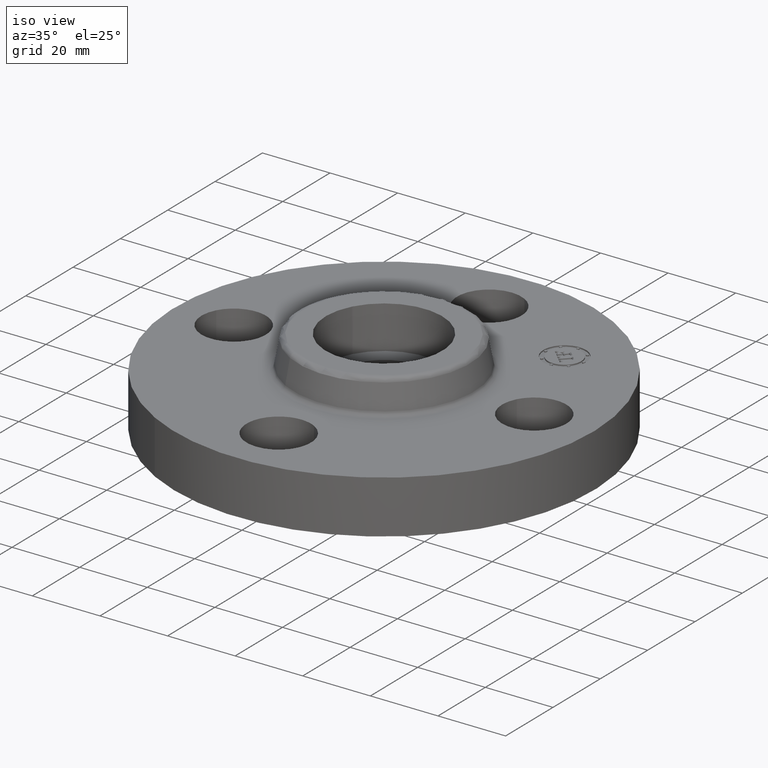
[diagram: clean part render]
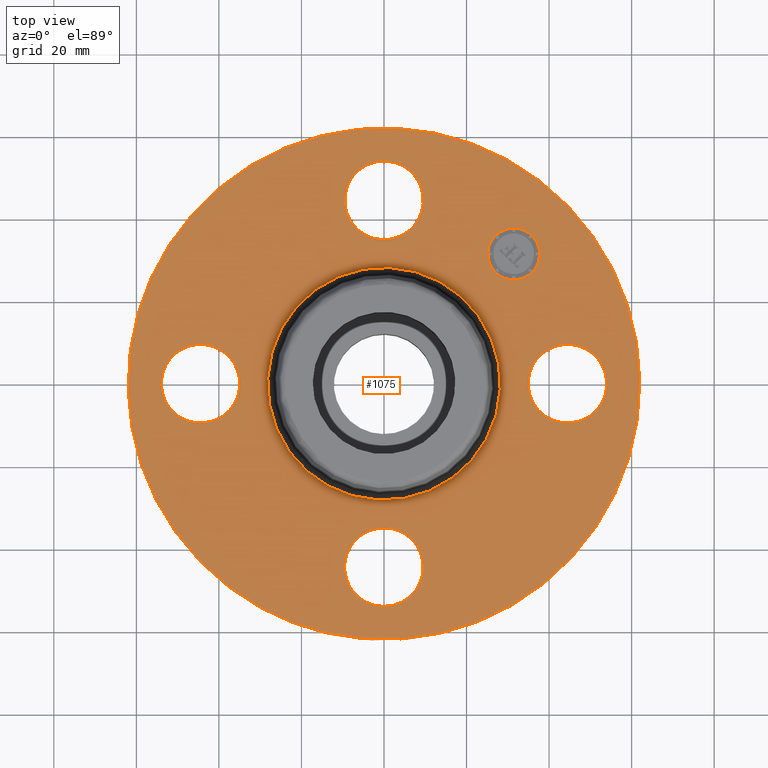
[diagram: tour spotlight — one face highlighted and labeled with its STEP entity id]
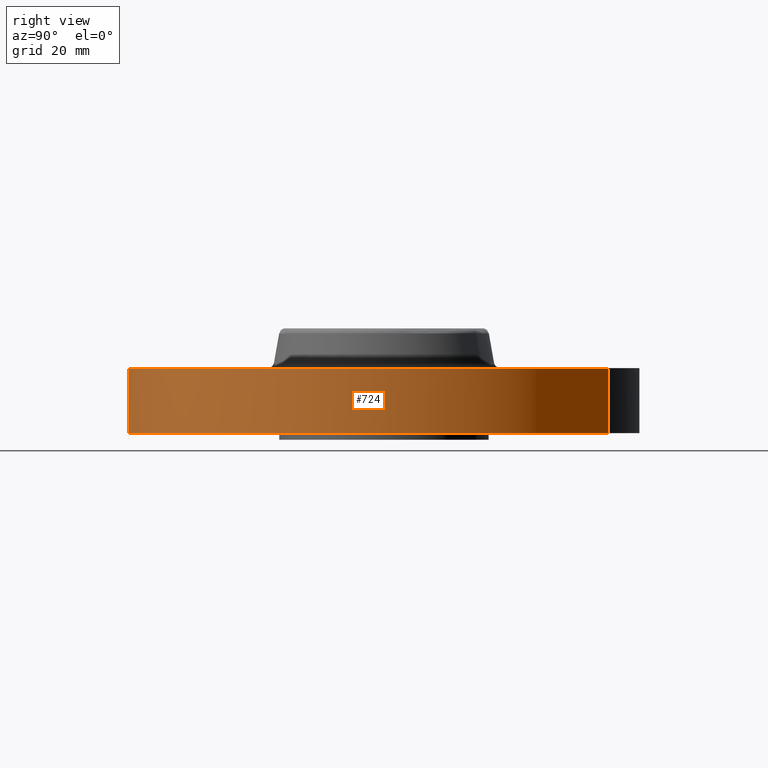
[diagram: tour spotlight — one face highlighted and labeled with its STEP entity id]
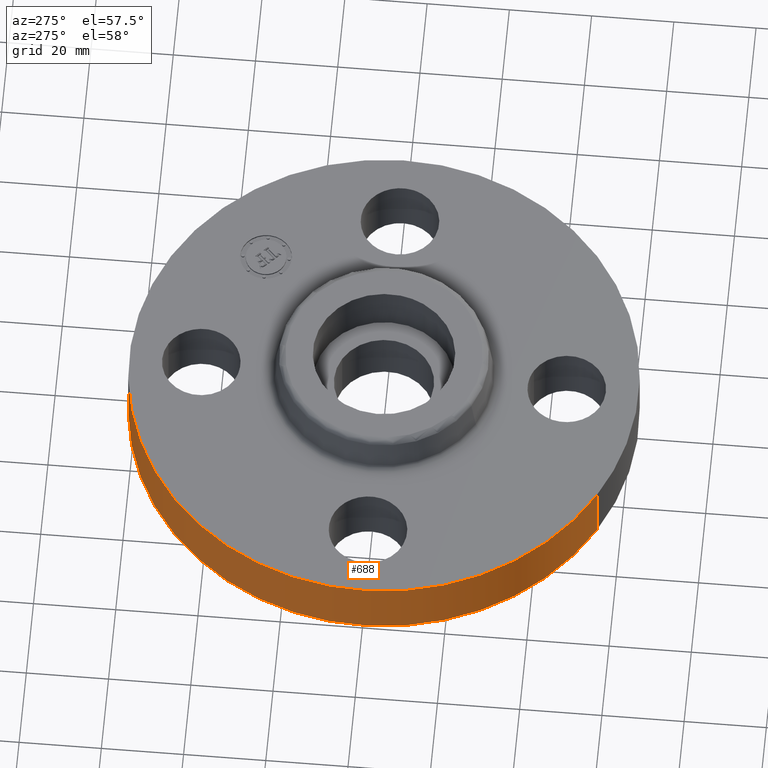
[diagram: tour spotlight — one face highlighted and labeled with its STEP entity id]
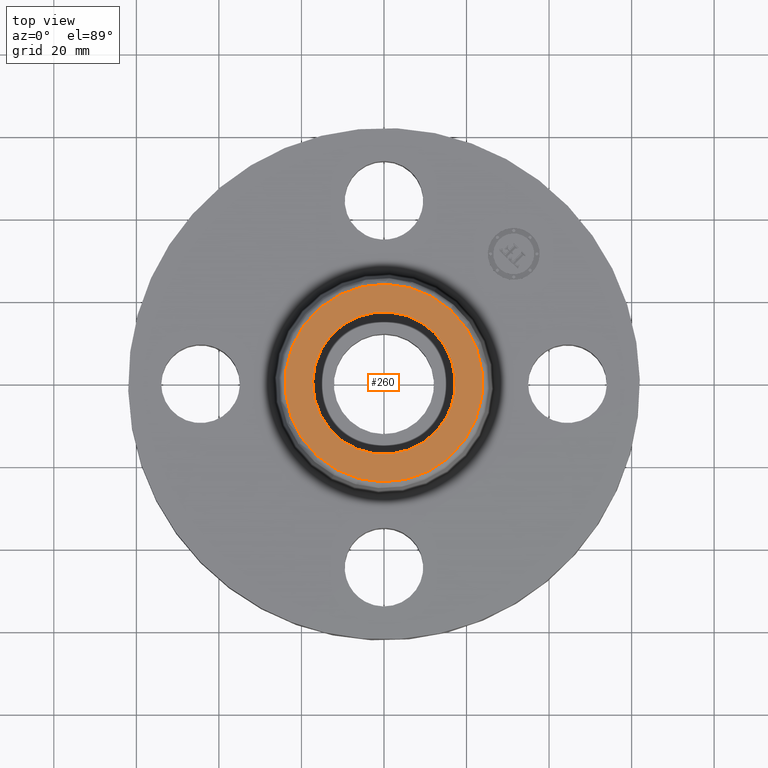
[diagram: tour spotlight — one face highlighted and labeled with its STEP entity id]
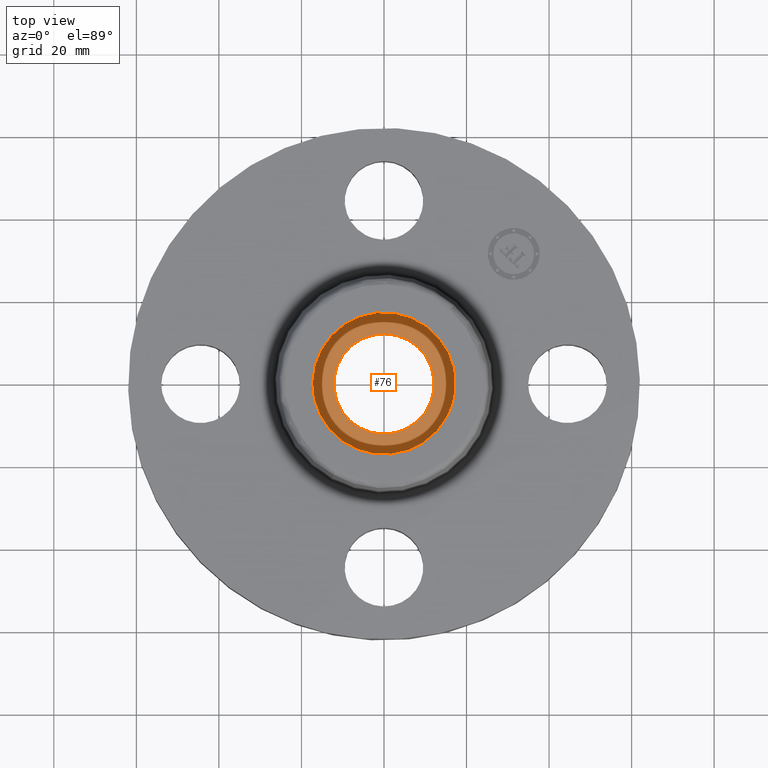
[diagram: tour spotlight — one face highlighted and labeled with its STEP entity id]
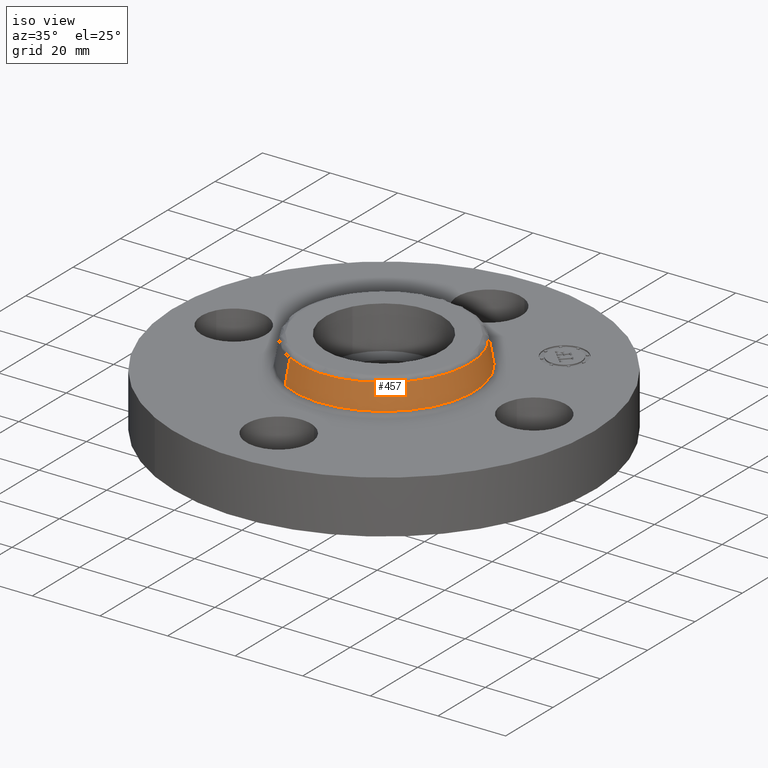
[diagram: tour spotlight — one face highlighted and labeled with its STEP entity id]
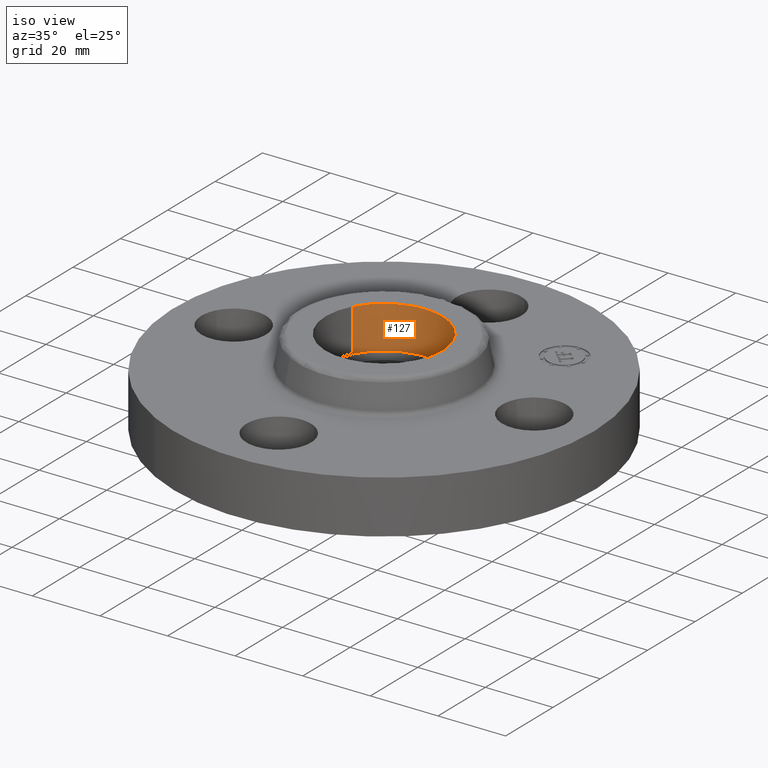
[diagram: tour spotlight — one face highlighted and labeled with its STEP entity id]
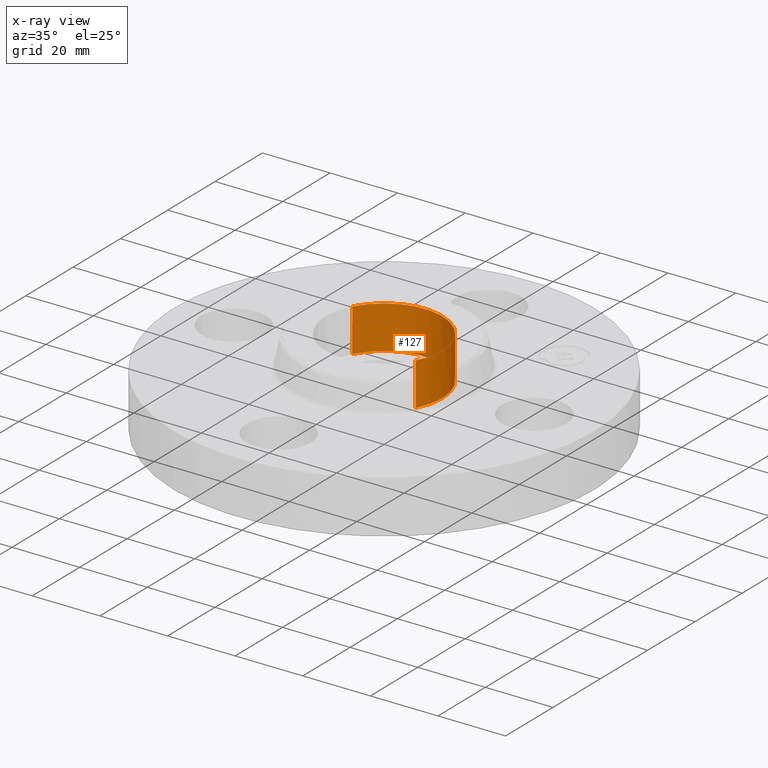
[diagram: x-ray of the same camera — body ghosted, this tour face saturated]
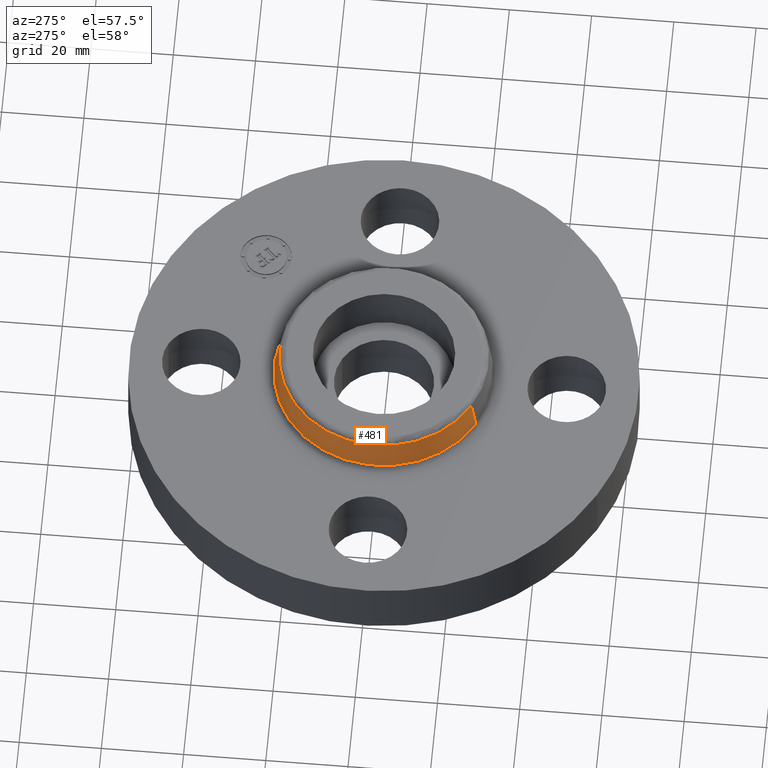
[diagram: tour spotlight — one face highlighted and labeled with its STEP entity id]
A machine part: a face-by-face anatomy tour. The part has 412 B-rep faces; the first image is the clean iso view, then the 8 largest visible faces are spotlighted one at a time (largest first), each with its STEP entity span.

Face 1 — top view, entity #1075. In plain terms, the highlighted planar face has unit normal (0, 0, -1).
Definition (entity closure, byte-faithful):
#603=AXIS2_PLACEMENT_3D('Circle Axis2P3D',#601,#602,$) ;
#641=AXIS2_PLACEMENT_3D('Circle Axis2P3D',#639,#640,$) ;
#672=AXIS2_PLACEMENT_3D('Circle Axis2P3D',#670,#671,$) ;
#753=AXIS2_PLACEMENT_3D('Circle Axis2P3D',#751,#752,$) ;
#827=AXIS2_PLACEMENT_3D('Circle Axis2P3D',#825,#826,$) ;
#901=AXIS2_PLACEMENT_3D('Circle Axis2P3D',#899,#900,$) ;
#975=AXIS2_PLACEMENT_3D('Circle Axis2P3D',#973,#974,$) ;
#1031=AXIS2_PLACEMENT_3D('Plane Axis2P3D',#1028,#1029,#1030) ;
#1059=AXIS2_PLACEMENT_3D('Circle Axis2P3D',#1057,#1058,$) ;
#1068=AXIS2_PLACEMENT_3D('Circle Axis2P3D',#1066,#1067,$) ;
#601=CARTESIAN_POINT('Axis2P3D Location',(0.,0.,0.620000000003)) ;
#605=CARTESIAN_POINT('Vertex',(0.53232821848,0.974420267848,0.620000000003)) ;
#607=CARTESIAN_POINT('Vertex',(-0.532328218482,-0.974420267852,0.620000000003)) ;
#639=CARTESIAN_POINT('Axis2P3D Location',(0.,0.,0.620000000003)) ;
#667=CARTESIAN_POINT('Vertex',(-1.1697983142,-2.14130145102,0.619999999989)) ;
#670=CARTESIAN_POINT('Axis2P3D Location',(0.,0.,0.619999999989)) ;
#674=CARTESIAN_POINT('Vertex',(1.1697983142,2.14130145102,0.619999999989)) ;
#702=CARTESIAN_POINT('Control Point',(1.1697983142,2.14130145102,0.619999999989)) ;
#703=CARTESIAN_POINT('Control Point',(1.50615315958,1.95754996152,0.61999999999)) ;
#704=CARTESIAN_POINT('Control Point',(1.80642848437,1.70775535256,0.61999999999)) ;
#705=CARTESIAN_POINT('Control Point',(2.05327575034,1.40131042472,0.619999999991)) ;
#706=CARTESIAN_POINT('Control Point',(2.41351270846,0.708143919932,0.619999999992)) ;
#707=CARTESIAN_POINT('Control Point',(2.48490322143,-0.0697724406241,0.619999999994)) ;
#708=CARTESIAN_POINT('Control Point',(2.44276131057,-0.461009102841,0.619999999994)) ;
#709=CARTESIAN_POINT('Control Point',(2.20734457047,-1.20587783479,0.619999999996)) ;
#710=CARTESIAN_POINT('Control Point',(1.70775535256,-1.80642848437,0.619999999997)) ;
#711=CARTESIAN_POINT('Control Point',(1.40131042472,-2.05327575033,0.619999999997)) ;
#712=CARTESIAN_POINT('Control Point',(0.708143919932,-2.41351270846,0.619999999999)) ;
#713=CARTESIAN_POINT('Control Point',(-0.0697724406238,-2.48490322143,0.62)) ;
#714=CARTESIAN_POINT('Control Point',(-0.461009102841,-2.44276131057,0.620000000001)) ;
#715=CARTESIAN_POINT('Control Point',(-0.833443468817,-2.32505294052,0.620000000001)) ;
#716=CARTESIAN_POINT('Control Point',(-1.1697983142,-2.14130145102,0.620000000002)) ;
#741=CARTESIAN_POINT('Vertex',(2.07909346074,-0.179784576955,0.620000000002)) ;
#748=CARTESIAN_POINT('Vertex',(1.4209065393,0.179784576977,0.619999999987)) ;
#751=CARTESIAN_POINT('Axis2P3D Location',(1.75000000001,0.,0.619999999987)) ;
#776=CARTESIAN_POINT('Control Point',(1.4209065393,0.179784576977,0.620000000002)) ;
#777=CARTESIAN_POINT('Control Point',(1.44914703461,0.231478456903,0.620000000001)) ;
#778=CARTESIAN_POINT('Control Point',(1.48753759951,0.27762732854,0.620000000001)) ;
#779=CARTESIAN_POINT('Control Point',(1.53463466834,0.315564920645,0.62)) ;
#780=CARTESIAN_POINT('Control Point',(1.64116640576,0.370929207243,0.619999999998)) ;
#781=CARTESIAN_POINT('Control Point',(1.76072322347,0.38190110985,0.619999999997)) ;
#782=CARTESIAN_POINT('Control Point',(1.82085180885,0.375424381748,0.619999999996)) ;
#783=CARTESIAN_POINT('Control Point',(1.93532958528,0.339243530298,0.619999999995)) ;
#784=CARTESIAN_POINT('Control Point',(2.02762732855,0.262462400496,0.619999999993)) ;
#785=CARTESIAN_POINT('Control Point',(2.06556492066,0.215365331668,0.619999999992)) ;
#786=CARTESIAN_POINT('Control Point',(2.12092920725,0.108833594252,0.619999999991)) ;
#787=CARTESIAN_POINT('Control Point',(2.13190110986,-0.0107232234562,0.61999999999)) ;
#788=CARTESIAN_POINT('Control Point',(2.12542438176,-0.0708518088378,0.619999999989)) ;
#789=CARTESIAN_POINT('Control Point',(2.10733395603,-0.128090697051,0.619999999988)) ;
#790=CARTESIAN_POINT('Control Point',(2.07909346072,-0.179784576977,0.619999999987)) ;
#815=CARTESIAN_POINT('Vertex',(0.179784576973,-1.42090653933,0.620000000002)) ;
#822=CARTESIAN_POINT('Vertex',(-0.179784576977,-2.07909346072,0.619999999987)) ;
#825=CARTESIAN_POINT('Axis2P3D Location',(-1.72584639625E-016,-1.75000000001,0.619999999987)) ;
#850=CARTESIAN_POINT('Control Point',(-0.179784576977,-2.07909346072,0.620000000002)) ;
#851=CARTESIAN_POINT('Control Point',(-0.231478456903,-2.05085296541,0.620000000001)) ;
#852=CARTESIAN_POINT('Control Point',(-0.27762732854,-2.01246240051,0.620000000001)) ;
#853=CARTESIAN_POINT('Control Point',(-0.315564920645,-1.96536533168,0.62)) ;
#854=CARTESIAN_POINT('Control Point',(-0.370929207243,-1.85883359426,0.619999999998)) ;
#855=CARTESIAN_POINT('Control Point',(-0.38190110985,-1.73927677655,0.619999999997)) ;
#856=CARTESIAN_POINT('Control Point',(-0.375424381748,-1.67914819117,0.619999999996)) ;
#857=CARTESIAN_POINT('Control Point',(-0.339243530298,-1.56467041474,0.619999999995)) ;
#858=CARTESIAN_POINT('Control Point',(-0.262462400496,-1.47237267147,0.619999999993)) ;
#859=CARTESIAN_POINT('Control Point',(-0.215365331668,-1.43443507936,0.619999999992)) ;
#860=CARTESIAN_POINT('Control Point',(-0.108833594252,-1.37907079277,0.619999999991)) ;
#861=CARTESIAN_POINT('Control Point',(0.0107232234562,-1.36809889016,0.61999999999)) ;
#862=CARTESIAN_POINT('Control Point',(0.0708518088378,-1.37457561826,0.619999999989)) ;
#863=CARTESIAN_POINT('Control Point',(0.128090697051,-1.39266604399,0.619999999988)) ;
#864=CARTESIAN_POINT('Control Point',(0.179784576977,-1.4209065393,0.619999999987)) ;
#889=CARTESIAN_POINT('Vertex',(-1.42090653927,-0.179784576955,0.620000000002)) ;
#896=CARTESIAN_POINT('Vertex',(-2.07909346072,0.179784576978,0.619999999987)) ;
#899=CARTESIAN_POINT('Axis2P3D Location',(-1.75000000001,-2.14313189852E-016,0.619999999987)) ;
#924=CARTESIAN_POINT('Control Point',(-2.07909346072,0.179784576978,0.620000000002)) ;
#925=CARTESIAN_POINT('Control Point',(-2.05085296541,0.231478456903,0.620000000001)) ;
#926=CARTESIAN_POINT('Control Point',(-2.01246240051,0.277627328541,0.620000000001)) ;
#927=CARTESIAN_POINT('Control Point',(-1.96536533168,0.315564920646,0.62)) ;
#928=CARTESIAN_POINT('Control Point',(-1.85883359426,0.370929207244,0.619999999998)) ;
#929=CARTESIAN_POINT('Control Point',(-1.73927677655,0.381901109851,0.619999999997)) ;
#930=CARTESIAN_POINT('Control Point',(-1.67914819117,0.375424381749,0.619999999996)) ;
#931=CARTESIAN_POINT('Control Point',(-1.56467041474,0.339243530299,0.619999999995)) ;
#932=CARTESIAN_POINT('Control Point',(-1.47237267147,0.262462400496,0.619999999993)) ;
#933=CARTESIAN_POINT('Control Point',(-1.43443507936,0.215365331668,0.619999999992)) ;
#934=CARTESIAN_POINT('Control Point',(-1.37907079277,0.108833594252,0.619999999991)) ;
#935=CARTESIAN_POINT('Control Point',(-1.36809889016,-0.0107232234563,0.61999999999)) ;
#936=CARTESIAN_POINT('Control Point',(-1.37457561826,-0.070851808838,0.619999999989)) ;
#937=CARTESIAN_POINT('Control Point',(-1.39266604399,-0.128090697052,0.619999999988)) ;
#938=CARTESIAN_POINT('Control Point',(-1.4209065393,-0.179784576977,0.619999999987)) ;
#963=CARTESIAN_POINT('Vertex',(-0.179784576973,1.42090653929,0.620000000002)) ;
#970=CARTESIAN_POINT('Vertex',(0.179784576977,2.07909346072,0.619999999987)) ;
#973=CARTESIAN_POINT('Axis2P3D Location',(-3.21469784777E-016,1.75000000001,0.619999999987)) ;
#998=CARTESIAN_POINT('Control Point',(0.179784576977,2.07909346072,0.620000000002)) ;
#999=CARTESIAN_POINT('Control Point',(0.231478456903,2.05085296541,0.620000000001)) ;
#1000=CARTESIAN_POINT('Control Point',(0.27762732854,2.01246240051,0.620000000001)) ;
#1001=CARTESIAN_POINT('Control Point',(0.315564920645,1.96536533168,0.62)) ;
#1002=CARTESIAN_POINT('Control Point',(0.370929207243,1.85883359426,0.619999999998)) ;
#1003=CARTESIAN_POINT('Control Point',(0.38190110985,1.73927677655,0.619999999997)) ;
#1004=CARTESIAN_POINT('Control Point',(0.375424381748,1.67914819117,0.619999999996)) ;
#1005=CARTESIAN_POINT('Control Point',(0.339243530298,1.56467041474,0.619999999995)) ;
#1006=CARTESIAN_POINT('Control Point',(0.262462400496,1.47237267147,0.619999999993)) ;
#1007=CARTESIAN_POINT('Control Point',(0.215365331668,1.43443507936,0.619999999992)) ;
#1008=CARTESIAN_POINT('Control Point',(0.108833594252,1.37907079277,0.619999999991)) ;
#1009=CARTESIAN_POINT('Control Point',(-0.0107232234562,1.36809889016,0.61999999999)) ;
#1010=CARTESIAN_POINT('Control Point',(-0.0708518088378,1.37457561826,0.619999999989)) ;
#1011=CARTESIAN_POINT('Control Point',(-0.128090697051,1.39266604399,0.619999999988)) ;
#1012=CARTESIAN_POINT('Control Point',(-0.179784576977,1.4209065393,0.619999999987)) ;
#1028=CARTESIAN_POINT('Axis2P3D Location',(0.,2.44000000001,0.620000000002)) ;
#1057=CARTESIAN_POINT('Axis2P3D Location',(1.23743686708,1.23743686702,0.620000000002)) ;
#1061=CARTESIAN_POINT('Vertex',(1.06242793876,1.41244579541,0.620000000002)) ;
#1063=CARTESIAN_POINT('Vertex',(1.41244579547,1.06242793871,0.620000000002)) ;
#1066=CARTESIAN_POINT('Axis2P3D Location',(1.23743686711,1.23743686706,0.620000000002)) ;
#602=DIRECTION('Axis2P3D Direction',(-0.,0.,-0.0393700787402)) ;
#640=DIRECTION('Axis2P3D Direction',(-0.,0.,-0.0393700787402)) ;
#671=DIRECTION('Axis2P3D Direction',(0.,0.,-0.0393700787402)) ;
#752=DIRECTION('Axis2P3D Direction',(0.,-0.,-0.0393700787402)) ;
#826=DIRECTION('Axis2P3D Direction',(0.,0.,-0.0393700787402)) ;
#900=DIRECTION('Axis2P3D Direction',(0.,-0.,-0.0393700787402)) ;
#974=DIRECTION('Axis2P3D Direction',(-0.,0.,-0.0393700787402)) ;
#1029=DIRECTION('Axis2P3D Direction',(0.,0.,-0.0393700787402)) ;
#1030=DIRECTION('Axis2P3D XDirection',(0.0393700787402,0.,0.)) ;
#1058=DIRECTION('Axis2P3D Direction',(0.,0.,-0.0393700787402)) ;
#1067=DIRECTION('Axis2P3D Direction',(0.,0.,-0.0393700787402)) ;
#1034=ORIENTED_EDGE('',*,*,#717,.F.) ;
#1035=ORIENTED_EDGE('',*,*,#676,.F.) ;
#1038=ORIENTED_EDGE('',*,*,#791,.T.) ;
#1039=ORIENTED_EDGE('',*,*,#755,.T.) ;
#1042=ORIENTED_EDGE('',*,*,#643,.T.) ;
#1043=ORIENTED_EDGE('',*,*,#609,.T.) ;
#1046=ORIENTED_EDGE('',*,*,#865,.T.) ;
#1047=ORIENTED_EDGE('',*,*,#829,.T.) ;
#1050=ORIENTED_EDGE('',*,*,#939,.T.) ;
#1051=ORIENTED_EDGE('',*,*,#903,.T.) ;
#1054=ORIENTED_EDGE('',*,*,#1013,.T.) ;
#1055=ORIENTED_EDGE('',*,*,#977,.T.) ;
#1072=ORIENTED_EDGE('',*,*,#1065,.T.) ;
#1073=ORIENTED_EDGE('',*,*,#1070,.T.) ;
#1040=FACE_BOUND('',#1037,.T.) ;
#1044=FACE_BOUND('',#1041,.T.) ;
#1048=FACE_BOUND('',#1045,.T.) ;
#1052=FACE_BOUND('',#1049,.T.) ;
#1056=FACE_BOUND('',#1053,.T.) ;
#1074=FACE_BOUND('',#1071,.T.) ;
#1075=ADVANCED_FACE('PartBody',(#1036,#1040,#1044,#1048,#1052,#1056,#1074),#1032,.F.) ;
#701=B_SPLINE_CURVE_WITH_KNOTS('',5,(#702,#703,#704,#705,#706,#707,#708,#709,#710,#711,#712,#713,#714,#715,#716),.UNSPECIFIED.,.F.,.U.,(6,3,3,3,6),(-97.3516731498,-48.6758365749,0.,48.6758365749,97.3516731498),.UNSPECIFIED.) ;
#775=B_SPLINE_CURVE_WITH_KNOTS('',5,(#776,#777,#778,#779,#780,#781,#782,#783,#784,#785,#786,#787,#788,#789,#790),.UNSPECIFIED.,.F.,.U.,(6,3,3,3,6),(-14.9618350128,-7.48091750638,0.,7.48091750638,14.9618350128),.UNSPECIFIED.) ;
#849=B_SPLINE_CURVE_WITH_KNOTS('',5,(#850,#851,#852,#853,#854,#855,#856,#857,#858,#859,#860,#861,#862,#863,#864),.UNSPECIFIED.,.F.,.U.,(6,3,3,3,6),(-14.9618350128,-7.48091750638,0.,7.48091750638,14.9618350128),.UNSPECIFIED.) ;
#923=B_SPLINE_CURVE_WITH_KNOTS('',5,(#924,#925,#926,#927,#928,#929,#930,#931,#932,#933,#934,#935,#936,#937,#938),.UNSPECIFIED.,.F.,.U.,(6,3,3,3,6),(-14.9618350128,-7.4809175064,0.,7.4809175064,14.9618350128),.UNSPECIFIED.) ;
#997=B_SPLINE_CURVE_WITH_KNOTS('',5,(#998,#999,#1000,#1001,#1002,#1003,#1004,#1005,#1006,#1007,#1008,#1009,#1010,#1011,#1012),.UNSPECIFIED.,.F.,.U.,(6,3,3,3,6),(-14.9618350128,-7.48091750638,0.,7.48091750638,14.9618350128),.UNSPECIFIED.) ;
#604=CIRCLE('generated circle',#603,1.11034597788) ;
#642=CIRCLE('generated circle',#641,1.11034597788) ;
#673=CIRCLE('generated circle',#672,2.44000000001) ;
#754=CIRCLE('generated circle',#753,0.375000000001) ;
#828=CIRCLE('generated circle',#827,0.375000000001) ;
#902=CIRCLE('generated circle',#901,0.375000000002) ;
#976=CIRCLE('generated circle',#975,0.375000000001) ;
#1060=CIRCLE('generated circle',#1059,0.247500000012) ;
#1069=CIRCLE('generated circle',#1068,0.247500000012) ;
#609=EDGE_CURVE('',#606,#608,#604,.T.) ;
#643=EDGE_CURVE('',#608,#606,#642,.T.) ;
#676=EDGE_CURVE('',#668,#675,#673,.T.) ;
#717=EDGE_CURVE('',#675,#668,#701,.T.) ;
#755=EDGE_CURVE('',#742,#749,#754,.T.) ;
#791=EDGE_CURVE('',#749,#742,#775,.T.) ;
#829=EDGE_CURVE('',#816,#823,#828,.T.) ;
#865=EDGE_CURVE('',#823,#816,#849,.T.) ;
#903=EDGE_CURVE('',#890,#897,#902,.T.) ;
#939=EDGE_CURVE('',#897,#890,#923,.T.) ;
#977=EDGE_CURVE('',#964,#971,#976,.T.) ;
#1013=EDGE_CURVE('',#971,#964,#997,.T.) ;
#1065=EDGE_CURVE('',#1062,#1064,#1060,.T.) ;
#1070=EDGE_CURVE('',#1064,#1062,#1069,.T.) ;
#1033=EDGE_LOOP('',(#1034,#1035)) ;
#1037=EDGE_LOOP('',(#1038,#1039)) ;
#1041=EDGE_LOOP('',(#1042,#1043)) ;
#1045=EDGE_LOOP('',(#1046,#1047)) ;
#1049=EDGE_LOOP('',(#1050,#1051)) ;
#1053=EDGE_LOOP('',(#1054,#1055)) ;
#1071=EDGE_LOOP('',(#1072,#1073)) ;
#1036=FACE_OUTER_BOUND('',#1033,.T.) ;
#1032=PLANE('',#1031) ;
#606=VERTEX_POINT('',#605) ;
#608=VERTEX_POINT('',#607) ;
#668=VERTEX_POINT('',#667) ;
#675=VERTEX_POINT('',#674) ;
#742=VERTEX_POINT('',#741) ;
#749=VERTEX_POINT('',#748) ;
#816=VERTEX_POINT('',#815) ;
#823=VERTEX_POINT('',#822) ;
#890=VERTEX_POINT('',#889) ;
#897=VERTEX_POINT('',#896) ;
#964=VERTEX_POINT('',#963) ;
#971=VERTEX_POINT('',#970) ;
#1062=VERTEX_POINT('',#1061) ;
#1064=VERTEX_POINT('',#1063) ;

Face 2 — right view, entity #724. In plain terms, the highlighted cylindrical surface (partial cylindrical patch) has radius 61.976 mm, axis along (0, 0, -1).
Definition (entity closure, byte-faithful):
#505=AXIS2_PLACEMENT_3D('Circle Axis2P3D',#503,#504,$) ;
#699=AXIS2_PLACEMENT_3D('Cylinder Axis2P3D',#696,#697,#698) ;
#498=CARTESIAN_POINT('Vertex',(-1.16979831419,-2.14130145103,0.)) ;
#500=CARTESIAN_POINT('Vertex',(1.16979831419,2.141301451,0.)) ;
#503=CARTESIAN_POINT('Axis2P3D Location',(8.39223703654E-016,-1.46661335744E-011,0.)) ;
#663=CARTESIAN_POINT('Line Origine',(-1.1697983142,-2.14130145102,0.309999999996)) ;
#667=CARTESIAN_POINT('Vertex',(-1.1697983142,-2.14130145102,0.619999999989)) ;
#674=CARTESIAN_POINT('Vertex',(1.1697983142,2.14130145102,0.619999999989)) ;
#677=CARTESIAN_POINT('Line Origine',(1.1697983142,2.14130145102,0.309999999996)) ;
#696=CARTESIAN_POINT('Axis2P3D Location',(0.,0.,0.468750000002)) ;
#702=CARTESIAN_POINT('Control Point',(1.1697983142,2.14130145102,0.619999999989)) ;
#703=CARTESIAN_POINT('Control Point',(1.50615315958,1.95754996152,0.61999999999)) ;
#704=CARTESIAN_POINT('Control Point',(1.80642848437,1.70775535256,0.61999999999)) ;
#705=CARTESIAN_POINT('Control Point',(2.05327575034,1.40131042472,0.619999999991)) ;
#706=CARTESIAN_POINT('Control Point',(2.41351270846,0.708143919932,0.619999999992)) ;
#707=CARTESIAN_POINT('Control Point',(2.48490322143,-0.0697724406241,0.619999999994)) ;
#708=CARTESIAN_POINT('Control Point',(2.44276131057,-0.461009102841,0.619999999994)) ;
#709=CARTESIAN_POINT('Control Point',(2.20734457047,-1.20587783479,0.619999999996)) ;
#710=CARTESIAN_POINT('Control Point',(1.70775535256,-1.80642848437,0.619999999997)) ;
#711=CARTESIAN_POINT('Control Point',(1.40131042472,-2.05327575033,0.619999999997)) ;
#712=CARTESIAN_POINT('Control Point',(0.708143919932,-2.41351270846,0.619999999999)) ;
#713=CARTESIAN_POINT('Control Point',(-0.0697724406238,-2.48490322143,0.62)) ;
#714=CARTESIAN_POINT('Control Point',(-0.461009102841,-2.44276131057,0.620000000001)) ;
#715=CARTESIAN_POINT('Control Point',(-0.833443468817,-2.32505294052,0.620000000001)) ;
#716=CARTESIAN_POINT('Control Point',(-1.1697983142,-2.14130145102,0.620000000002)) ;
#504=DIRECTION('Axis2P3D Direction',(0.,0.,-0.0393700787402)) ;
#664=DIRECTION('Vector Direction',(0.,0.,-0.0393700787402)) ;
#678=DIRECTION('Vector Direction',(0.,0.,-0.0393700787402)) ;
#697=DIRECTION('Axis2P3D Direction',(0.,0.,-0.0393700787402)) ;
#698=DIRECTION('Axis2P3D XDirection',(0.0188750212049,0.0345504945626,0.)) ;
#665=VECTOR('Line Direction',#664,0.0393700787402) ;
#679=VECTOR('Line Direction',#678,0.0393700787402) ;
#719=ORIENTED_EDGE('',*,*,#507,.F.) ;
#720=ORIENTED_EDGE('',*,*,#681,.T.) ;
#721=ORIENTED_EDGE('',*,*,#717,.T.) ;
#722=ORIENTED_EDGE('',*,*,#669,.F.) ;
#724=ADVANCED_FACE('PartBody',(#723),#700,.T.) ;
#701=B_SPLINE_CURVE_WITH_KNOTS('',5,(#702,#703,#704,#705,#706,#707,#708,#709,#710,#711,#712,#713,#714,#715,#716),.UNSPECIFIED.,.F.,.U.,(6,3,3,3,6),(-97.3516731498,-48.6758365749,0.,48.6758365749,97.3516731498),.UNSPECIFIED.) ;
#506=CIRCLE('generated circle',#505,2.44) ;
#700=CYLINDRICAL_SURFACE('generated cylinder',#699,2.44000000001) ;
#507=EDGE_CURVE('',#501,#499,#506,.T.) ;
#669=EDGE_CURVE('',#499,#668,#666,.F.) ;
#681=EDGE_CURVE('',#501,#675,#680,.F.) ;
#717=EDGE_CURVE('',#675,#668,#701,.T.) ;
#718=EDGE_LOOP('',(#719,#720,#721,#722)) ;
#723=FACE_OUTER_BOUND('',#718,.T.) ;
#666=LINE('Line',#663,#665) ;
#680=LINE('Line',#677,#679) ;
#499=VERTEX_POINT('',#498) ;
#501=VERTEX_POINT('',#500) ;
#668=VERTEX_POINT('',#667) ;
#675=VERTEX_POINT('',#674) ;

Face 3 — auxiliary view, entity #688. In plain terms, the highlighted cylindrical surface (partial cylindrical patch) has radius 61.976 mm, axis along (0, 0, -1).
Definition (entity closure, byte-faithful):
#496=AXIS2_PLACEMENT_3D('Circle Axis2P3D',#494,#495,$) ;
#661=AXIS2_PLACEMENT_3D('Cylinder Axis2P3D',#658,#659,#660) ;
#672=AXIS2_PLACEMENT_3D('Circle Axis2P3D',#670,#671,$) ;
#494=CARTESIAN_POINT('Axis2P3D Location',(-8.39223703654E-016,-1.46666930569E-011,0.)) ;
#498=CARTESIAN_POINT('Vertex',(-1.16979831419,-2.14130145103,0.)) ;
#500=CARTESIAN_POINT('Vertex',(1.16979831419,2.141301451,0.)) ;
#658=CARTESIAN_POINT('Axis2P3D Location',(0.,0.,0.468750000002)) ;
#663=CARTESIAN_POINT('Line Origine',(-1.1697983142,-2.14130145102,0.309999999996)) ;
#667=CARTESIAN_POINT('Vertex',(-1.1697983142,-2.14130145102,0.619999999989)) ;
#670=CARTESIAN_POINT('Axis2P3D Location',(0.,0.,0.619999999989)) ;
#674=CARTESIAN_POINT('Vertex',(1.1697983142,2.14130145102,0.619999999989)) ;
#677=CARTESIAN_POINT('Line Origine',(1.1697983142,2.14130145102,0.309999999996)) ;
#495=DIRECTION('Axis2P3D Direction',(0.,0.,-0.0393700787402)) ;
#659=DIRECTION('Axis2P3D Direction',(0.,0.,-0.0393700787402)) ;
#660=DIRECTION('Axis2P3D XDirection',(-0.0188750212049,-0.0345504945626,0.)) ;
#664=DIRECTION('Vector Direction',(0.,0.,-0.0393700787402)) ;
#671=DIRECTION('Axis2P3D Direction',(0.,0.,-0.0393700787402)) ;
#678=DIRECTION('Vector Direction',(0.,0.,-0.0393700787402)) ;
#665=VECTOR('Line Direction',#664,0.0393700787402) ;
#679=VECTOR('Line Direction',#678,0.0393700787402) ;
#683=ORIENTED_EDGE('',*,*,#502,.F.) ;
#684=ORIENTED_EDGE('',*,*,#669,.T.) ;
#685=ORIENTED_EDGE('',*,*,#676,.T.) ;
#686=ORIENTED_EDGE('',*,*,#681,.F.) ;
#688=ADVANCED_FACE('PartBody',(#687),#662,.T.) ;
#497=CIRCLE('generated circle',#496,2.44) ;
#673=CIRCLE('generated circle',#672,2.44000000001) ;
#662=CYLINDRICAL_SURFACE('generated cylinder',#661,2.44000000001) ;
#502=EDGE_CURVE('',#499,#501,#497,.T.) ;
#669=EDGE_CURVE('',#499,#668,#666,.F.) ;
#676=EDGE_CURVE('',#668,#675,#673,.T.) ;
#681=EDGE_CURVE('',#501,#675,#680,.F.) ;
#682=EDGE_LOOP('',(#683,#684,#685,#686)) ;
#687=FACE_OUTER_BOUND('',#682,.T.) ;
#666=LINE('Line',#663,#665) ;
#680=LINE('Line',#677,#679) ;
#499=VERTEX_POINT('',#498) ;
#501=VERTEX_POINT('',#500) ;
#668=VERTEX_POINT('',#667) ;
#675=VERTEX_POINT('',#674) ;

Face 4 — top view, entity #260. In plain terms, the highlighted planar face has unit normal (0, 0, -1).
Definition (entity closure, byte-faithful):
#142=AXIS2_PLACEMENT_3D('Circle Axis2P3D',#140,#141,$) ;
#236=AXIS2_PLACEMENT_3D('Plane Axis2P3D',#233,#234,#235) ;
#240=AXIS2_PLACEMENT_3D('Circle Axis2P3D',#238,#239,$) ;
#249=AXIS2_PLACEMENT_3D('Circle Axis2P3D',#247,#248,$) ;
#91=CARTESIAN_POINT('Control Point',(-0.596756142088,0.326009366253,1.)) ;
#92=CARTESIAN_POINT('Control Point',(-0.545546710587,0.419747601851,0.999999999999)) ;
#93=CARTESIAN_POINT('Control Point',(-0.475931819566,0.503430889087,0.999999999999)) ;
#94=CARTESIAN_POINT('Control Point',(-0.390529134758,0.572224389438,0.999999999998)) ;
#95=CARTESIAN_POINT('Control Point',(-0.197351584244,0.672618295801,0.999999999997)) ;
#96=CARTESIAN_POINT('Control Point',(0.0194447785343,0.69251401253,0.999999999996)) ;
#97=CARTESIAN_POINT('Control Point',(0.128477946693,0.68076954557,0.999999999996)) ;
#98=CARTESIAN_POINT('Control Point',(0.336064314615,0.615161601608,0.999999999995)) ;
#99=CARTESIAN_POINT('Control Point',(0.503430889087,0.475931819566,0.999999999994)) ;
#100=CARTESIAN_POINT('Control Point',(0.572224389438,0.390529134758,0.999999999993)) ;
#101=CARTESIAN_POINT('Control Point',(0.672618295801,0.197351584244,0.999999999992)) ;
#102=CARTESIAN_POINT('Control Point',(0.69251401253,-0.0194447785341,0.999999999991)) ;
#103=CARTESIAN_POINT('Control Point',(0.68076954557,-0.128477946693,0.99999999999)) ;
#104=CARTESIAN_POINT('Control Point',(0.647965573589,-0.232271130654,0.99999999999)) ;
#105=CARTESIAN_POINT('Control Point',(0.596756142088,-0.326009366252,0.999999999989)) ;
#106=CARTESIAN_POINT('Vertex',(-0.596756142102,0.326009366287,1.)) ;
#108=CARTESIAN_POINT('Vertex',(0.596756142102,-0.326009366244,1.)) ;
#140=CARTESIAN_POINT('Axis2P3D Location',(1.39870617276E-016,1.04902962957E-016,0.999999999989)) ;
#233=CARTESIAN_POINT('Axis2P3D Location',(0.,0.942649769464,1.)) ;
#238=CARTESIAN_POINT('Axis2P3D Location',(-1.28118688012E-011,-8.42426740789E-012,1.)) ;
#242=CARTESIAN_POINT('Vertex',(0.451930373441,0.827252999652,1.)) ;
#244=CARTESIAN_POINT('Vertex',(-0.45193037344,-0.827252999652,1.)) ;
#247=CARTESIAN_POINT('Axis2P3D Location',(1.28118688012E-011,-2.24225187848E-011,1.)) ;
#141=DIRECTION('Axis2P3D Direction',(0.,0.,-0.0393700787402)) ;
#234=DIRECTION('Axis2P3D Direction',(0.,0.,-0.0393700787402)) ;
#235=DIRECTION('Axis2P3D XDirection',(0.0393700787402,0.,0.)) ;
#239=DIRECTION('Axis2P3D Direction',(0.,0.,-0.0393700787402)) ;
#248=DIRECTION('Axis2P3D Direction',(0.,0.,-0.0393700787402)) ;
#253=ORIENTED_EDGE('',*,*,#246,.F.) ;
#254=ORIENTED_EDGE('',*,*,#251,.F.) ;
#257=ORIENTED_EDGE('',*,*,#110,.T.) ;
#258=ORIENTED_EDGE('',*,*,#144,.T.) ;
#259=FACE_BOUND('',#256,.T.) ;
#260=ADVANCED_FACE('PartBody',(#255,#259),#237,.F.) ;
#90=B_SPLINE_CURVE_WITH_KNOTS('',5,(#91,#92,#93,#94,#95,#96,#97,#98,#99,#100,#101,#102,#103,#104,#105),.UNSPECIFIED.,.F.,.U.,(6,3,3,3,6),(-27.1307941565,-13.5653970783,-1.7763568394E-015,13.5653970783,27.1307941565),.UNSPECIFIED.) ;
#143=CIRCLE('generated circle',#142,0.680000000003) ;
#241=CIRCLE('generated circle',#240,0.942649769456) ;
#250=CIRCLE('generated circle',#249,0.942649769456) ;
#110=EDGE_CURVE('',#107,#109,#90,.T.) ;
#144=EDGE_CURVE('',#109,#107,#143,.T.) ;
#246=EDGE_CURVE('',#243,#245,#241,.T.) ;
#251=EDGE_CURVE('',#245,#243,#250,.T.) ;
#252=EDGE_LOOP('',(#253,#254)) ;
#256=EDGE_LOOP('',(#257,#258)) ;
#255=FACE_OUTER_BOUND('',#252,.T.) ;
#237=PLANE('',#236) ;
#107=VERTEX_POINT('',#106) ;
#109=VERTEX_POINT('',#108) ;
#243=VERTEX_POINT('',#242) ;
#245=VERTEX_POINT('',#244) ;

Face 5 — top view, entity #76. In plain terms, the highlighted planar face has unit normal (0, 0, -1).
Definition (entity closure, byte-faithful):
#38=AXIS2_PLACEMENT_3D('Plane Axis2P3D',#35,#36,#37) ;
#42=AXIS2_PLACEMENT_3D('Circle Axis2P3D',#40,#41,$) ;
#51=AXIS2_PLACEMENT_3D('Circle Axis2P3D',#49,#50,$) ;
#60=AXIS2_PLACEMENT_3D('Circle Axis2P3D',#58,#59,$) ;
#69=AXIS2_PLACEMENT_3D('Circle Axis2P3D',#67,#68,$) ;
#35=CARTESIAN_POINT('Axis2P3D Location',(1.39870617276E-016,1.04902962957E-016,0.500000000002)) ;
#40=CARTESIAN_POINT('Axis2P3D Location',(2.09805925914E-016,-1.04902962956E-016,0.500000000002)) ;
#44=CARTESIAN_POINT('Vertex',(-0.596756142102,0.326009366265,0.500000000002)) ;
#46=CARTESIAN_POINT('Vertex',(0.596756142102,-0.326009366265,0.500000000002)) ;
#49=CARTESIAN_POINT('Axis2P3D Location',(6.99353086382E-017,3.1470888887E-016,0.500000000002)) ;
#58=CARTESIAN_POINT('Axis2P3D Location',(6.99353086382E-017,6.99353086381E-017,0.500000000002)) ;
#62=CARTESIAN_POINT('Vertex',(-0.229405120206,-0.419923255851,0.500000000002)) ;
#64=CARTESIAN_POINT('Vertex',(0.229405120206,0.419923255851,0.500000000002)) ;
#67=CARTESIAN_POINT('Axis2P3D Location',(2.09805925914E-016,1.39870617276E-016,0.500000000002)) ;
#36=DIRECTION('Axis2P3D Direction',(0.,0.,-0.0393700787402)) ;
#37=DIRECTION('Axis2P3D XDirection',(0.0393700787402,0.,0.)) ;
#41=DIRECTION('Axis2P3D Direction',(0.,0.,-0.0393700787402)) ;
#50=DIRECTION('Axis2P3D Direction',(0.,0.,-0.0393700787402)) ;
#59=DIRECTION('Axis2P3D Direction',(0.,0.,-0.0393700787402)) ;
#68=DIRECTION('Axis2P3D Direction',(0.,0.,-0.0393700787402)) ;
#55=ORIENTED_EDGE('',*,*,#48,.F.) ;
#56=ORIENTED_EDGE('',*,*,#53,.F.) ;
#73=ORIENTED_EDGE('',*,*,#66,.T.) ;
#74=ORIENTED_EDGE('',*,*,#71,.T.) ;
#75=FACE_BOUND('',#72,.T.) ;
#76=ADVANCED_FACE('PartBody',(#57,#75),#39,.F.) ;
#43=CIRCLE('generated circle',#42,0.680000000022) ;
#52=CIRCLE('generated circle',#51,0.680000000022) ;
#61=CIRCLE('generated circle',#60,0.47849999998) ;
#70=CIRCLE('generated circle',#69,0.47849999998) ;
#48=EDGE_CURVE('',#45,#47,#43,.T.) ;
#53=EDGE_CURVE('',#47,#45,#52,.T.) ;
#66=EDGE_CURVE('',#63,#65,#61,.T.) ;
#71=EDGE_CURVE('',#65,#63,#70,.T.) ;
#54=EDGE_LOOP('',(#55,#56)) ;
#72=EDGE_LOOP('',(#73,#74)) ;
#57=FACE_OUTER_BOUND('',#54,.T.) ;
#39=PLANE('',#38) ;
#45=VERTEX_POINT('',#44) ;
#47=VERTEX_POINT('',#46) ;
#63=VERTEX_POINT('',#62) ;
#65=VERTEX_POINT('',#64) ;

Face 6 — iso view, entity #457. In plain terms, the highlighted conical surface has half-angle 10 deg.
Definition (entity closure, byte-faithful):
#310=AXIS2_PLACEMENT_3D('Circle Axis2P3D',#308,#309,$) ;
#430=AXIS2_PLACEMENT_3D('Cone Axis2P3D',#427,#428,#429) ;
#434=AXIS2_PLACEMENT_3D('Circle Axis2P3D',#432,#433,$) ;
#308=CARTESIAN_POINT('Axis2P3D Location',(0.,0.,0.950418890665)) ;
#312=CARTESIAN_POINT('Vertex',(0.480258892683,0.879108006299,0.950418890663)) ;
#314=CARTESIAN_POINT('Vertex',(-0.480258892683,-0.879108006299,0.950418890664)) ;
#427=CARTESIAN_POINT('Axis2P3D Location',(0.,0.,0.950418890664)) ;
#432=CARTESIAN_POINT('Axis2P3D Location',(0.,0.,0.669581109343)) ;
#436=CARTESIAN_POINT('Vertex',(0.503999699238,0.922565261201,0.669581109345)) ;
#438=CARTESIAN_POINT('Vertex',(-0.503999699238,-0.922565261201,0.669581109344)) ;
#441=CARTESIAN_POINT('Line Origine',(0.492129295958,0.900836633746,0.810000000002)) ;
#446=CARTESIAN_POINT('Line Origine',(-0.492129295958,-0.900836633746,0.810000000002)) ;
#309=DIRECTION('Axis2P3D Direction',(-0.,0.,-0.0393700787402)) ;
#428=DIRECTION('Axis2P3D Direction',(0.,0.,-0.0393700787402)) ;
#429=DIRECTION('Axis2P3D XDirection',(0.0188750212049,0.0345504945626,0.)) ;
#433=DIRECTION('Axis2P3D Direction',(-0.,0.,-0.0393700787402)) ;
#442=DIRECTION('Vector Direction',(0.00327761303565,0.00599963041827,-0.03877195878)) ;
#447=DIRECTION('Vector Direction',(-0.00327761303565,-0.00599963041827,-0.03877195878)) ;
#443=VECTOR('Line Direction',#442,0.0393700787402) ;
#448=VECTOR('Line Direction',#447,0.0393700787402) ;
#452=ORIENTED_EDGE('',*,*,#440,.F.) ;
#453=ORIENTED_EDGE('',*,*,#445,.T.) ;
#454=ORIENTED_EDGE('',*,*,#316,.T.) ;
#455=ORIENTED_EDGE('',*,*,#450,.F.) ;
#457=ADVANCED_FACE('PartBody',(#456),#431,.T.) ;
#311=CIRCLE('generated circle',#310,1.00173823464) ;
#435=CIRCLE('generated circle',#434,1.05125751269) ;
#431=CONICAL_SURFACE('Cone',#430,1.00173823464,0.174532925199) ;
#316=EDGE_CURVE('',#313,#315,#311,.T.) ;
#440=EDGE_CURVE('',#437,#439,#435,.T.) ;
#445=EDGE_CURVE('',#437,#313,#444,.F.) ;
#450=EDGE_CURVE('',#439,#315,#449,.F.) ;
#451=EDGE_LOOP('',(#452,#453,#454,#455)) ;
#456=FACE_OUTER_BOUND('',#451,.T.) ;
#444=LINE('Line',#441,#443) ;
#449=LINE('Line',#446,#448) ;
#313=VERTEX_POINT('',#312) ;
#315=VERTEX_POINT('',#314) ;
#437=VERTEX_POINT('',#436) ;
#439=VERTEX_POINT('',#438) ;

Face 7 — iso view, entity #127. An x-ray twin of the same camera follows (body ghosted, this face saturated) — the face is partly hidden behind the body. In plain terms, the highlighted cylindrical surface (partial cylindrical patch) has radius 17.272 mm, axis along (0, 0, -1).
Definition (entity closure, byte-faithful):
#42=AXIS2_PLACEMENT_3D('Circle Axis2P3D',#40,#41,$) ;
#88=AXIS2_PLACEMENT_3D('Cylinder Axis2P3D',#85,#86,#87) ;
#40=CARTESIAN_POINT('Axis2P3D Location',(2.09805925914E-016,-1.04902962956E-016,0.500000000002)) ;
#44=CARTESIAN_POINT('Vertex',(-0.596756142102,0.326009366265,0.500000000002)) ;
#46=CARTESIAN_POINT('Vertex',(0.596756142102,-0.326009366265,0.500000000002)) ;
#85=CARTESIAN_POINT('Axis2P3D Location',(1.39870617276E-016,1.04902962957E-016,0.99606299213)) ;
#91=CARTESIAN_POINT('Control Point',(-0.596756142088,0.326009366253,1.)) ;
#92=CARTESIAN_POINT('Control Point',(-0.545546710587,0.419747601851,0.999999999999)) ;
#93=CARTESIAN_POINT('Control Point',(-0.475931819566,0.503430889087,0.999999999999)) ;
#94=CARTESIAN_POINT('Control Point',(-0.390529134758,0.572224389438,0.999999999998)) ;
#95=CARTESIAN_POINT('Control Point',(-0.197351584244,0.672618295801,0.999999999997)) ;
#96=CARTESIAN_POINT('Control Point',(0.0194447785343,0.69251401253,0.999999999996)) ;
#97=CARTESIAN_POINT('Control Point',(0.128477946693,0.68076954557,0.999999999996)) ;
#98=CARTESIAN_POINT('Control Point',(0.336064314615,0.615161601608,0.999999999995)) ;
#99=CARTESIAN_POINT('Control Point',(0.503430889087,0.475931819566,0.999999999994)) ;
#100=CARTESIAN_POINT('Control Point',(0.572224389438,0.390529134758,0.999999999993)) ;
#101=CARTESIAN_POINT('Control Point',(0.672618295801,0.197351584244,0.999999999992)) ;
#102=CARTESIAN_POINT('Control Point',(0.69251401253,-0.0194447785341,0.999999999991)) ;
#103=CARTESIAN_POINT('Control Point',(0.68076954557,-0.128477946693,0.99999999999)) ;
#104=CARTESIAN_POINT('Control Point',(0.647965573589,-0.232271130654,0.99999999999)) ;
#105=CARTESIAN_POINT('Control Point',(0.596756142088,-0.326009366252,0.999999999989)) ;
#106=CARTESIAN_POINT('Vertex',(-0.596756142102,0.326009366287,1.)) ;
#108=CARTESIAN_POINT('Vertex',(0.596756142102,-0.326009366244,1.)) ;
#111=CARTESIAN_POINT('Line Origine',(-0.596756142088,0.326009366253,0.750000000001)) ;
#116=CARTESIAN_POINT('Line Origine',(0.596756142088,-0.326009366253,0.750000000001)) ;
#41=DIRECTION('Axis2P3D Direction',(0.,0.,-0.0393700787402)) ;
#86=DIRECTION('Axis2P3D Direction',(0.,0.,-0.0393700787402)) ;
#87=DIRECTION('Axis2P3D XDirection',(-0.0345504945626,0.0188750212049,-0.)) ;
#112=DIRECTION('Vector Direction',(0.,0.,-0.0393700787402)) ;
#117=DIRECTION('Vector Direction',(0.,0.,-0.0393700787402)) ;
#113=VECTOR('Line Direction',#112,0.0393700787402) ;
#118=VECTOR('Line Direction',#117,0.0393700787402) ;
#122=ORIENTED_EDGE('',*,*,#110,.F.) ;
#123=ORIENTED_EDGE('',*,*,#115,.F.) ;
#124=ORIENTED_EDGE('',*,*,#48,.T.) ;
#125=ORIENTED_EDGE('',*,*,#120,.T.) ;
#127=ADVANCED_FACE('PartBody',(#126),#89,.F.) ;
#90=B_SPLINE_CURVE_WITH_KNOTS('',5,(#91,#92,#93,#94,#95,#96,#97,#98,#99,#100,#101,#102,#103,#104,#105),.UNSPECIFIED.,.F.,.U.,(6,3,3,3,6),(-27.1307941565,-13.5653970783,-1.7763568394E-015,13.5653970783,27.1307941565),.UNSPECIFIED.) ;
#43=CIRCLE('generated circle',#42,0.680000000022) ;
#89=CYLINDRICAL_SURFACE('generated cylinder',#88,0.680000000003) ;
#48=EDGE_CURVE('',#45,#47,#43,.T.) ;
#110=EDGE_CURVE('',#107,#109,#90,.T.) ;
#115=EDGE_CURVE('',#45,#107,#114,.F.) ;
#120=EDGE_CURVE('',#47,#109,#119,.F.) ;
#121=EDGE_LOOP('',(#122,#123,#124,#125)) ;
#126=FACE_OUTER_BOUND('',#121,.T.) ;
#114=LINE('Line',#111,#113) ;
#119=LINE('Line',#116,#118) ;
#45=VERTEX_POINT('',#44) ;
#47=VERTEX_POINT('',#46) ;
#107=VERTEX_POINT('',#106) ;
#109=VERTEX_POINT('',#108) ;

Face 8 — auxiliary view, entity #481. In plain terms, the highlighted conical surface has half-angle 10 deg.
Definition (entity closure, byte-faithful):
#348=AXIS2_PLACEMENT_3D('Circle Axis2P3D',#346,#347,$) ;
#468=AXIS2_PLACEMENT_3D('Cone Axis2P3D',#465,#466,#467) ;
#472=AXIS2_PLACEMENT_3D('Circle Axis2P3D',#470,#471,$) ;
#312=CARTESIAN_POINT('Vertex',(0.480258892683,0.879108006299,0.950418890663)) ;
#314=CARTESIAN_POINT('Vertex',(-0.480258892683,-0.879108006299,0.950418890664)) ;
#346=CARTESIAN_POINT('Axis2P3D Location',(0.,0.,0.950418890665)) ;
#436=CARTESIAN_POINT('Vertex',(0.503999699238,0.922565261201,0.669581109345)) ;
#438=CARTESIAN_POINT('Vertex',(-0.503999699238,-0.922565261201,0.669581109344)) ;
#441=CARTESIAN_POINT('Line Origine',(0.492129295958,0.900836633746,0.810000000002)) ;
#446=CARTESIAN_POINT('Line Origine',(-0.492129295958,-0.900836633746,0.810000000002)) ;
#465=CARTESIAN_POINT('Axis2P3D Location',(0.,0.,0.950418890664)) ;
#470=CARTESIAN_POINT('Axis2P3D Location',(0.,0.,0.669581109343)) ;
#347=DIRECTION('Axis2P3D Direction',(-0.,0.,-0.0393700787402)) ;
#442=DIRECTION('Vector Direction',(0.00327761303565,0.00599963041827,-0.03877195878)) ;
#447=DIRECTION('Vector Direction',(-0.00327761303565,-0.00599963041827,-0.03877195878)) ;
#466=DIRECTION('Axis2P3D Direction',(0.,0.,-0.0393700787402)) ;
#467=DIRECTION('Axis2P3D XDirection',(-0.0188750212049,-0.0345504945626,0.)) ;
#471=DIRECTION('Axis2P3D Direction',(-0.,0.,-0.0393700787402)) ;
#443=VECTOR('Line Direction',#442,0.0393700787402) ;
#448=VECTOR('Line Direction',#447,0.0393700787402) ;
#476=ORIENTED_EDGE('',*,*,#474,.F.) ;
#477=ORIENTED_EDGE('',*,*,#450,.T.) ;
#478=ORIENTED_EDGE('',*,*,#350,.T.) ;
#479=ORIENTED_EDGE('',*,*,#445,.F.) ;
#481=ADVANCED_FACE('PartBody',(#480),#469,.T.) ;
#349=CIRCLE('generated circle',#348,1.00173823464) ;
#473=CIRCLE('generated circle',#472,1.05125751269) ;
#469=CONICAL_SURFACE('Cone',#468,1.00173823464,0.174532925199) ;
#350=EDGE_CURVE('',#315,#313,#349,.T.) ;
#445=EDGE_CURVE('',#437,#313,#444,.F.) ;
#450=EDGE_CURVE('',#439,#315,#449,.F.) ;
#474=EDGE_CURVE('',#439,#437,#473,.T.) ;
#475=EDGE_LOOP('',(#476,#477,#478,#479)) ;
#480=FACE_OUTER_BOUND('',#475,.T.) ;
#444=LINE('Line',#441,#443) ;
#449=LINE('Line',#446,#448) ;
#313=VERTEX_POINT('',#312) ;
#315=VERTEX_POINT('',#314) ;
#437=VERTEX_POINT('',#436) ;
#439=VERTEX_POINT('',#438) ;